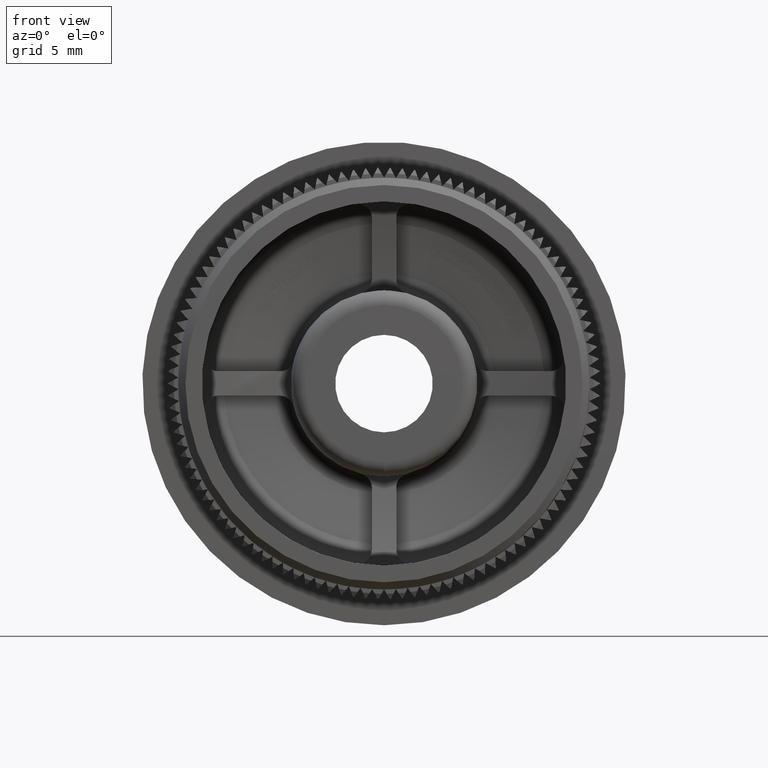
[diagram: clean part render]
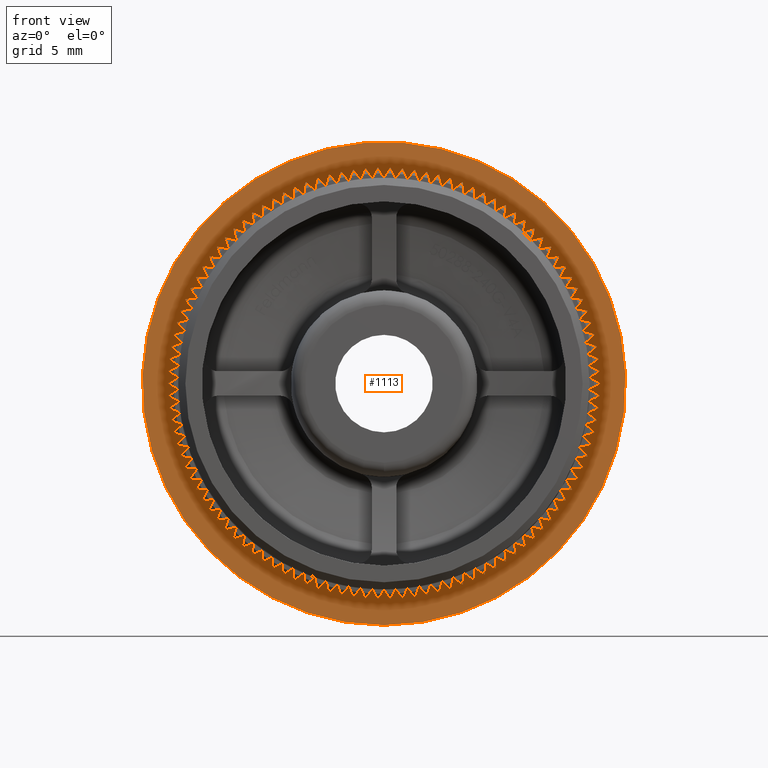
[diagram: same view with one face highlighted and labeled with its STEP entity id]
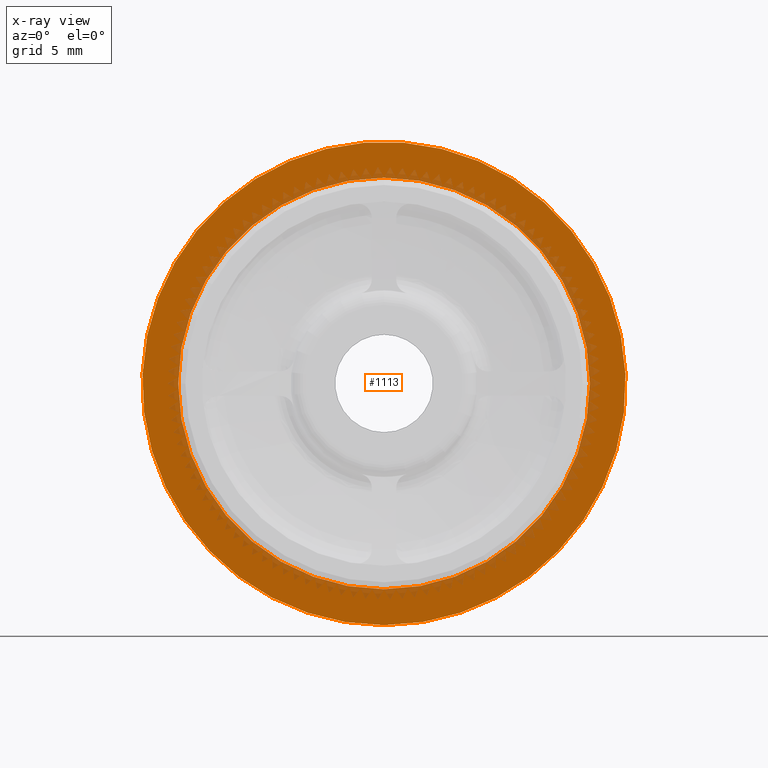
[diagram: x-ray of the same camera — body ghosted, the highlighted face saturated]
A machine part, front view. The second image highlights one B-rep face of the part: STEP entity #1113.
The next image is the same camera in x-ray: the body ghosted, the highlighted face saturated — about 15% of this face is hidden behind the body in this view.
In plain terms, the highlighted planar face has unit normal (0, -1, -0).
Its self-contained STEP definition (entity closure, byte-faithful):
#1113 = ADVANCED_FACE ( 'NONE', ( #20860, #38204 ), #27245, .T. ) ;
#1340 = CARTESIAN_POINT ( 'NONE',  ( 0.0000000000000000000, 12.50000000000000000, -16.85000000000000100 ) ) ;
#4443 = CIRCLE ( 'NONE', #25808, 14.35000000000000000 ) ;
#4696 = ORIENTED_EDGE ( 'NONE', *, *, #7624, .F. ) ;
#5900 = DIRECTION ( 'NONE',  ( -0.0000000000000000000, -1.000000000000000000, -0.0000000000000000000 ) ) ;
#5972 = CARTESIAN_POINT ( 'NONE',  ( 16.85000000000000100, 12.50000000000000000, 0.0000000000000000000 ) ) ;
#7624 = EDGE_CURVE ( 'NONE', #15342, #15342, #4443, .T. ) ;
#12347 = EDGE_CURVE ( 'NONE', #29467, #29467, #27325, .T. ) ;
#13535 = AXIS2_PLACEMENT_3D ( 'NONE', #5972, #15272, #18044 ) ;
#14973 = ORIENTED_EDGE ( 'NONE', *, *, #12347, .T. ) ;
#15272 = DIRECTION ( 'NONE',  ( 0.0000000000000000000, -1.000000000000000000, -0.0000000000000000000 ) ) ;
#15342 = VERTEX_POINT ( 'NONE', #30859 ) ;
#18044 = DIRECTION ( 'NONE',  ( 0.0000000000000000000, 0.0000000000000000000, -1.000000000000000000 ) ) ;
#18354 = CARTESIAN_POINT ( 'NONE',  ( 0.0000000000000000000, 12.50000000000000000, 0.0000000000000000000 ) ) ;
#20860 = FACE_BOUND ( 'NONE', #32825, .T. ) ;
#20873 = DIRECTION ( 'NONE',  ( 0.0000000000000000000, 0.0000000000000000000, -1.000000000000000000 ) ) ;
#21356 = AXIS2_PLACEMENT_3D ( 'NONE', #18354, #30191, #33079 ) ;
#25808 = AXIS2_PLACEMENT_3D ( 'NONE', #30069, #5900, #20873 ) ;
#27245 = PLANE ( 'NONE',  #13535 ) ;
#27325 = CIRCLE ( 'NONE', #21356, 16.85000000000000100 ) ;
#29467 = VERTEX_POINT ( 'NONE', #1340 ) ;
#30069 = CARTESIAN_POINT ( 'NONE',  ( 0.0000000000000000000, 12.50000000000000000, 0.0000000000000000000 ) ) ;
#30191 = DIRECTION ( 'NONE',  ( -0.0000000000000000000, -1.000000000000000000, -0.0000000000000000000 ) ) ;
#30859 = CARTESIAN_POINT ( 'NONE',  ( 0.0000000000000000000, 12.50000000000000000, -14.35000000000000000 ) ) ;
#32825 = EDGE_LOOP ( 'NONE', ( #4696 ) ) ;
#33079 = DIRECTION ( 'NONE',  ( 0.0000000000000000000, 0.0000000000000000000, -1.000000000000000000 ) ) ;
#35962 = EDGE_LOOP ( 'NONE', ( #14973 ) ) ;
#38204 = FACE_OUTER_BOUND ( 'NONE', #35962, .T. ) ;